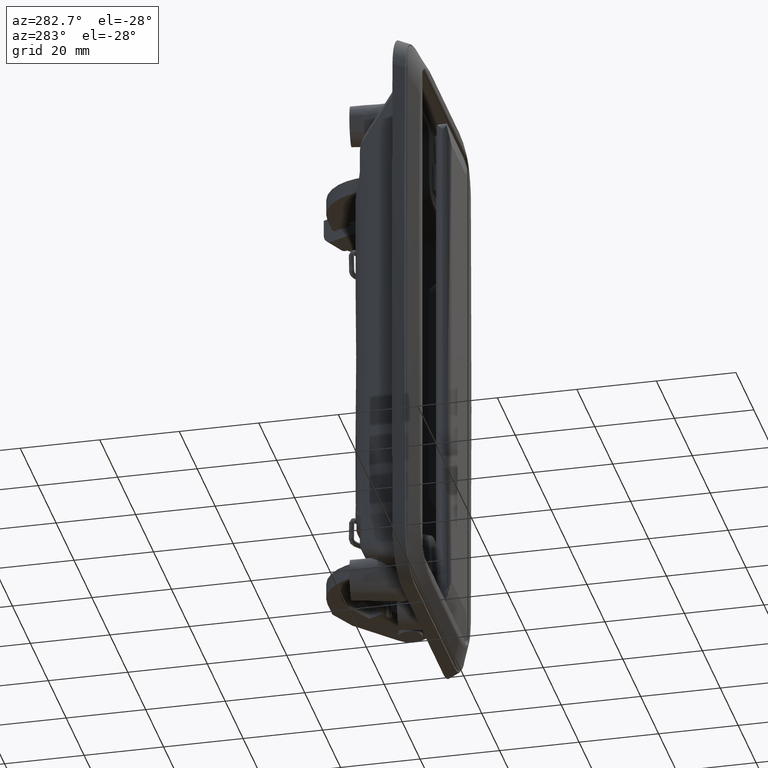
[diagram: clean part render]
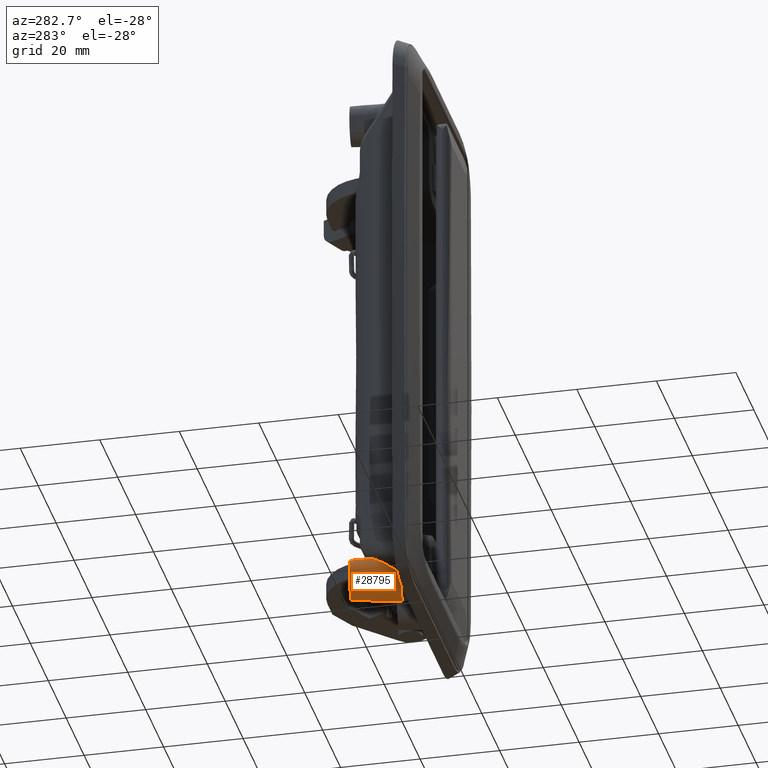
[diagram: same view with one face highlighted and labeled with its STEP entity id]
A machine part, auxiliary view. The second image highlights one B-rep face of the part: STEP entity #28795.
In plain terms, the highlighted face is a freeform B-spline surface patch.
Its self-contained STEP definition (entity closure, byte-faithful):
#27864=CARTESIAN_POINT('',(-3.766423528070551,22.800311192609708,-66.783090912038205));
#27865=VERTEX_POINT('',#27864);
#27877=CARTESIAN_POINT('',(-6.999930303597163,22.317058365390590,-68.000088749235331));
#27878=VERTEX_POINT('',#27877);
#27879=CARTESIAN_POINT('',(-6.999930303597163,22.317058365390590,-68.000088749235331));
#27880=CARTESIAN_POINT('',(-6.596084142745198,22.377413828527452,-68.000190419865632));
#27881=CARTESIAN_POINT('',(-5.898606683814406,22.481652964966159,-67.913190856041240));
#27882=CARTESIAN_POINT('',(-4.784326727536715,22.648183910025612,-67.522183162609608));
#27883=CARTESIAN_POINT('',(-4.127413415077734,22.746360669043721,-67.098794049315515));
#27884=CARTESIAN_POINT('',(-3.766423528070551,22.800311192609708,-66.783090912038205));
#27885=B_SPLINE_CURVE_WITH_KNOTS('',3,(#27879,#27880,#27881,#27882,#27883,#27884),.UNSPECIFIED.,.F.,.U.,(4,1,1,4),(0.000000033822521,1.224995455682898,2.115870844548129,3.563592407878036),.UNSPECIFIED.);
#27886=EDGE_CURVE('',#27878,#27865,#27885,.T.);
#27888=CARTESIAN_POINT('',(-11.945099999999959,21.578000000000010,-63.0));
#27889=VERTEX_POINT('',#27888);
#27890=CARTESIAN_POINT('',(-11.945099999999959,21.578000000000010,-63.0));
#27891=CARTESIAN_POINT('',(-11.945256158311320,21.577976662053381,-63.449977733377892));
#27892=CARTESIAN_POINT('',(-11.840592271893129,21.593618738172321,-64.227131306758153));
#27893=CARTESIAN_POINT('',(-11.401729781519020,21.659206981787701,-65.377702602509217));
#27894=CARTESIAN_POINT('',(-10.801228316147039,21.748952260242529,-66.262717299995515));
#27895=CARTESIAN_POINT('',(-10.027613949551499,21.864569358203720,-66.989174874325172));
#27896=CARTESIAN_POINT('',(-9.237676858969742,21.982625896353792,-67.495001192709779));
#27897=CARTESIAN_POINT('',(-8.213588684389681,22.135676444421229,-67.894436954989942));
#27898=CARTESIAN_POINT('',(-7.444963006268145,22.250547980111811,-68.000231670710448));
#27899=CARTESIAN_POINT('',(-6.999930303597163,22.317058365390590,-68.000088749235331));
#27900=B_SPLINE_CURVE_WITH_KNOTS('',3,(#27890,#27891,#27892,#27893,#27894,#27895,#27896,#27897,#27898,#27899),.UNSPECIFIED.,.F.,.U.,(4,1,1,1,1,1,1,4),(0.000245068932325,1.350157645137158,2.331933733232821,3.681856648021897,4.540839251469414,5.522612947934483,6.504400527039060,7.854294035632536),.UNSPECIFIED.);
#27901=EDGE_CURVE('',#27889,#27878,#27900,.T.);
#27903=CARTESIAN_POINT('',(-10.233442654048270,21.833811582360489,-59.216909089430096));
#27904=VERTEX_POINT('',#27903);
#27905=CARTESIAN_POINT('',(-10.233442654048270,21.833811582360489,-59.216909089430096));
#27906=CARTESIAN_POINT('',(-10.618216762541399,21.776306572213549,-59.552818620880203));
#27907=CARTESIAN_POINT('',(-11.283856497674160,21.676825622078560,-60.346014742289960));
#27908=CARTESIAN_POINT('',(-11.835347535873900,21.594403765360720,-61.681495549246947));
#27909=CARTESIAN_POINT('',(-11.945158108581630,21.577991681258201,-62.597762788584603));
#27910=CARTESIAN_POINT('',(-11.945099999999959,21.578000000000010,-63.0));
#27911=B_SPLINE_CURVE_WITH_KNOTS('',3,(#27905,#27906,#27907,#27908,#27909,#27910),.UNSPECIFIED.,.F.,.U.,(4,1,1,4),(0.000000069811969,1.541950423503796,3.083889531536165,4.290632392534394),.UNSPECIFIED.);
#27912=EDGE_CURVE('',#27904,#27889,#27911,.T.);
#28728=CARTESIAN_POINT('',(-10.268667439816580,22.147533269061821,-59.230254333671937));
#28729=CARTESIAN_POINT('',(-13.997005946859920,21.590331002647684,-62.488142447046442));
#28730=CARTESIAN_POINT('',(-10.774902712355980,22.071876125627860,-66.257888113374477));
#28731=CARTESIAN_POINT('',(-7.552799477852043,22.553421248608043,-70.027633779702541));
#28732=CARTESIAN_POINT('',(-3.824460970808708,23.110623515022191,-66.769745666328063));
#28733=CARTESIAN_POINT('',(-8.788319403031757,8.963238822510364,-58.669436990124026));
#28734=CARTESIAN_POINT('',(-13.071315195324821,8.323142715893562,-62.411994447013846));
#28735=CARTESIAN_POINT('',(-9.369866260459144,8.876326320769330,-66.742557456889827));
#28736=CARTESIAN_POINT('',(-5.668417325593468,9.429509925645098,-71.073120466765801));
#28737=CARTESIAN_POINT('',(-1.385421533300404,10.069606032261900,-67.330563009875974));
#28745=(BOUNDED_SURFACE()B_SPLINE_SURFACE(2,1,((#28728,#28733),(#28729,#28734),(#28730,#28735),(#28731,#28736),(#28732,#28737)),.UNSPECIFIED.,.F.,.F.,.U.)B_SPLINE_SURFACE_WITH_KNOTS((3,2,3),(2,2),(0.0,9.483303466793839,18.966606933587681),(0.0,13.278989662478260),.UNSPECIFIED.)GEOMETRIC_REPRESENTATION_ITEM()RATIONAL_B_SPLINE_SURFACE(((1.0,1.0),(0.707106781186548,0.707106781186548),(1.0,1.0),(0.707106781186548,0.707106781186548),(1.0,1.0)))REPRESENTATION_ITEM('')SURFACE());
#28746=ORIENTED_EDGE('',*,*,#27912,.T.);
#28747=ORIENTED_EDGE('',*,*,#27901,.T.);
#28748=ORIENTED_EDGE('',*,*,#27886,.T.);
#28749=CARTESIAN_POINT('',(-1.444911303902938,10.387684255184290,-67.316884456174961));
#28750=VERTEX_POINT('',#28749);
#28751=CARTESIAN_POINT('',(-3.766423528070551,22.800311192609708,-66.783090912038205));
#28752=CARTESIAN_POINT('',(-1.444911303902938,10.387684255184290,-67.316884456174961));
#28753=QUASI_UNIFORM_CURVE('',1,(#28751,#28752),.UNSPECIFIED.,.F.,.U.);
#28754=EDGE_CURVE('',#27865,#28750,#28753,.T.);
#28755=ORIENTED_EDGE('',*,*,#28754,.T.);
#28756=CARTESIAN_POINT('',(-10.628272422694920,9.015221045407861,-64.303885212068494));
#28757=VERTEX_POINT('',#28756);
#28758=CARTESIAN_POINT('',(-10.628272422694920,9.015221045407861,-64.303885212068494));
#28759=CARTESIAN_POINT('',(-10.490675424986231,9.035785569722542,-64.897903311652101));
#28760=CARTESIAN_POINT('',(-10.047767224107780,9.101979541882360,-65.983195162836793));
#28761=CARTESIAN_POINT('',(-9.090440037581328,9.245053898343848,-67.142521200076658));
#28762=CARTESIAN_POINT('',(-8.096211810359126,9.393642769527768,-67.894751232398264));
#28763=CARTESIAN_POINT('',(-7.226393991733162,9.523638115709874,-68.328422096248659));
#28764=CARTESIAN_POINT('',(-6.211893462684746,9.675256287545810,-68.634245985826354));
#28765=CARTESIAN_POINT('',(-5.215655221424220,9.824144962926068,-68.740674846406179));
#28766=CARTESIAN_POINT('',(-3.979407827034927,10.008902994018580,-68.631508426992013));
#28767=CARTESIAN_POINT('',(-2.700971448550991,10.199965929306281,-68.226398785885124));
#28768=CARTESIAN_POINT('',(-1.832841375934883,10.329708117121079,-67.656057047603298));
#28769=CARTESIAN_POINT('',(-1.444911303902938,10.387684255184290,-67.316884456174961));
#28770=B_SPLINE_CURVE_WITH_KNOTS('',3,(#28758,#28759,#28760,#28761,#28762,#28763,#28764,#28765,#28766,#28767,#28768,#28769),.UNSPECIFIED.,.F.,.U.,(4,1,1,1,1,1,1,1,1,4),(0.000000361597584,1.830186003305171,3.477386375875737,4.484015297084911,5.582174159799666,6.405631823249403,7.686808578173697,8.601938845280623,10.157658613995240,11.713286688146621),.UNSPECIFIED.);
#28771=EDGE_CURVE('',#28757,#28750,#28770,.T.);
#28772=ORIENTED_EDGE('',*,*,#28771,.F.);
#28773=CARTESIAN_POINT('',(-9.621085963859800,16.380034909026872,-58.984923564753117));
#28774=VERTEX_POINT('',#28773);
#28775=CARTESIAN_POINT('',(-9.621085963859800,16.380034909026872,-58.984923564753117));
#28776=CARTESIAN_POINT('',(-11.810401907127302,13.541042675312545,-61.035279634563103));
#28777=CARTESIAN_POINT('',(-10.628272422694920,9.015221045407861,-64.303885212068494));
#28785=(BOUNDED_CURVE()B_SPLINE_CURVE(2,(#28775,#28776,#28777),.UNSPECIFIED.,.F.,.U.)B_SPLINE_CURVE_WITH_KNOTS((3,3),(0.219919556507745,1.0),.UNSPECIFIED.)CURVE()GEOMETRIC_REPRESENTATION_ITEM()RATIONAL_B_SPLINE_CURVE((0.926035043821564,0.831836337447709,1.0))REPRESENTATION_ITEM(''));
#28786=EDGE_CURVE('',#28774,#28757,#28785,.T.);
#28787=ORIENTED_EDGE('',*,*,#28786,.F.);
#28788=CARTESIAN_POINT('',(-10.233442654048270,21.833811582360489,-59.216909089430096));
#28789=CARTESIAN_POINT('',(-9.621085963859800,16.380034909026872,-58.984923564753117));
#28790=QUASI_UNIFORM_CURVE('',1,(#28788,#28789),.UNSPECIFIED.,.F.,.U.);
#28791=EDGE_CURVE('',#27904,#28774,#28790,.T.);
#28792=ORIENTED_EDGE('',*,*,#28791,.F.);
#28793=EDGE_LOOP('',(#28746,#28747,#28748,#28755,#28772,#28787,#28792));
#28794=FACE_OUTER_BOUND('',#28793,.T.);
#28795=ADVANCED_FACE('',(#28794),#28745,.T.);